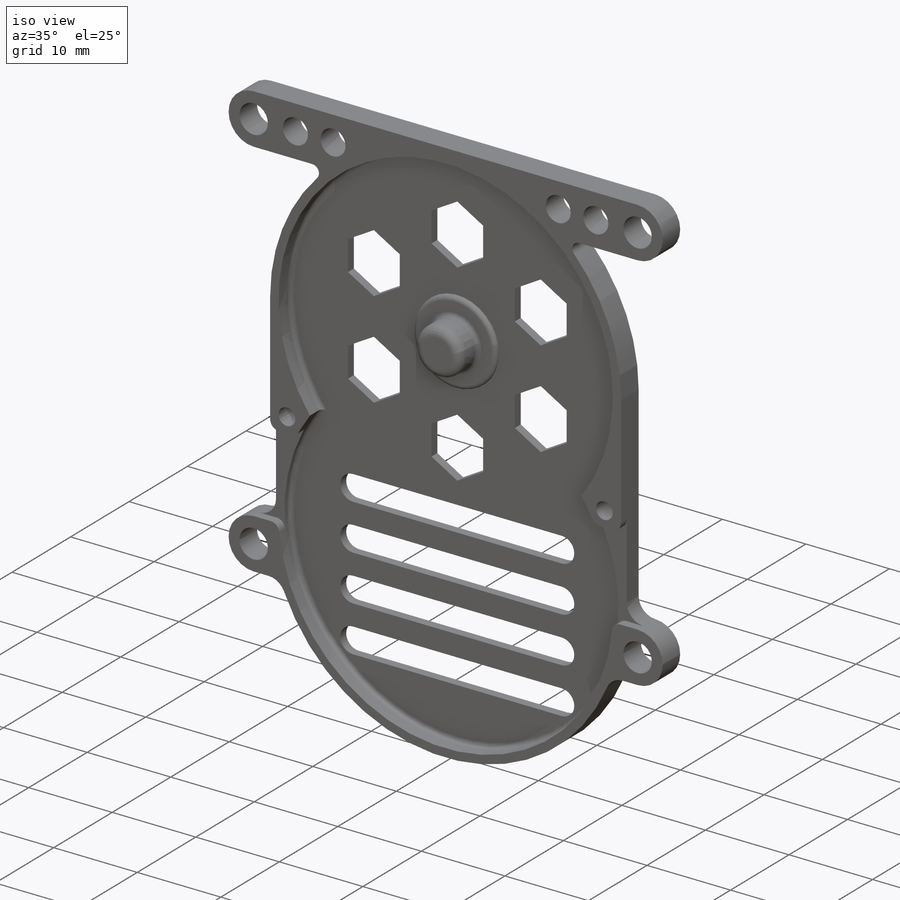
[diagram: iso view]
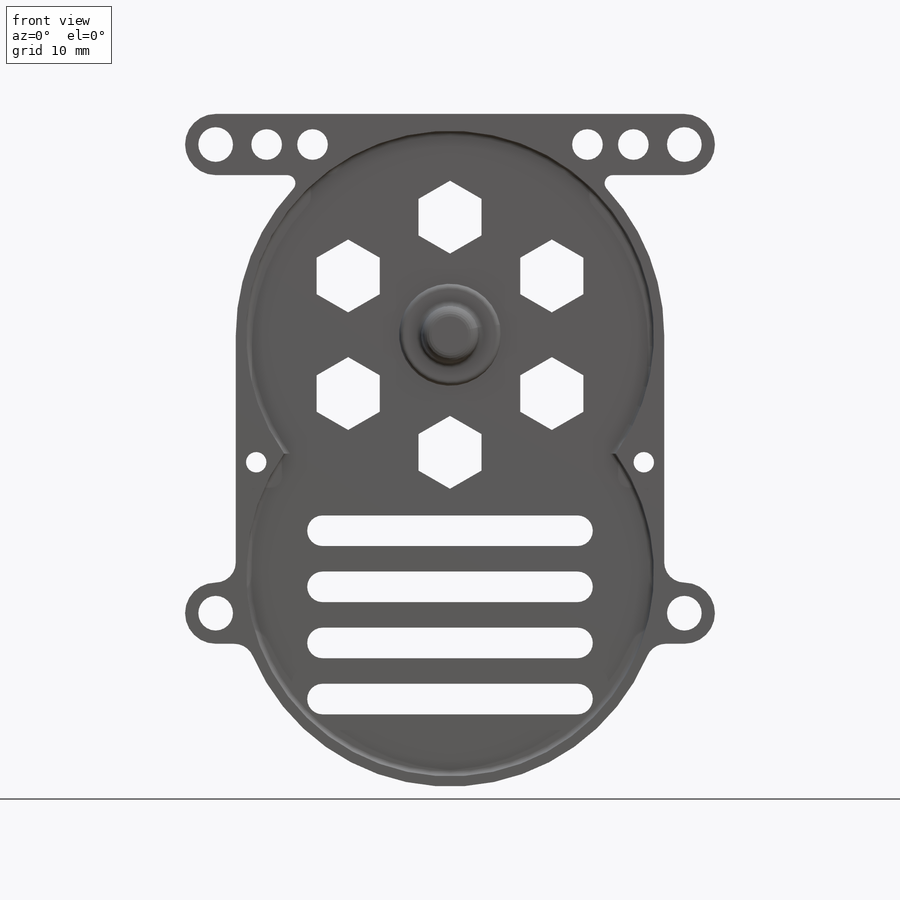
[diagram: front view]
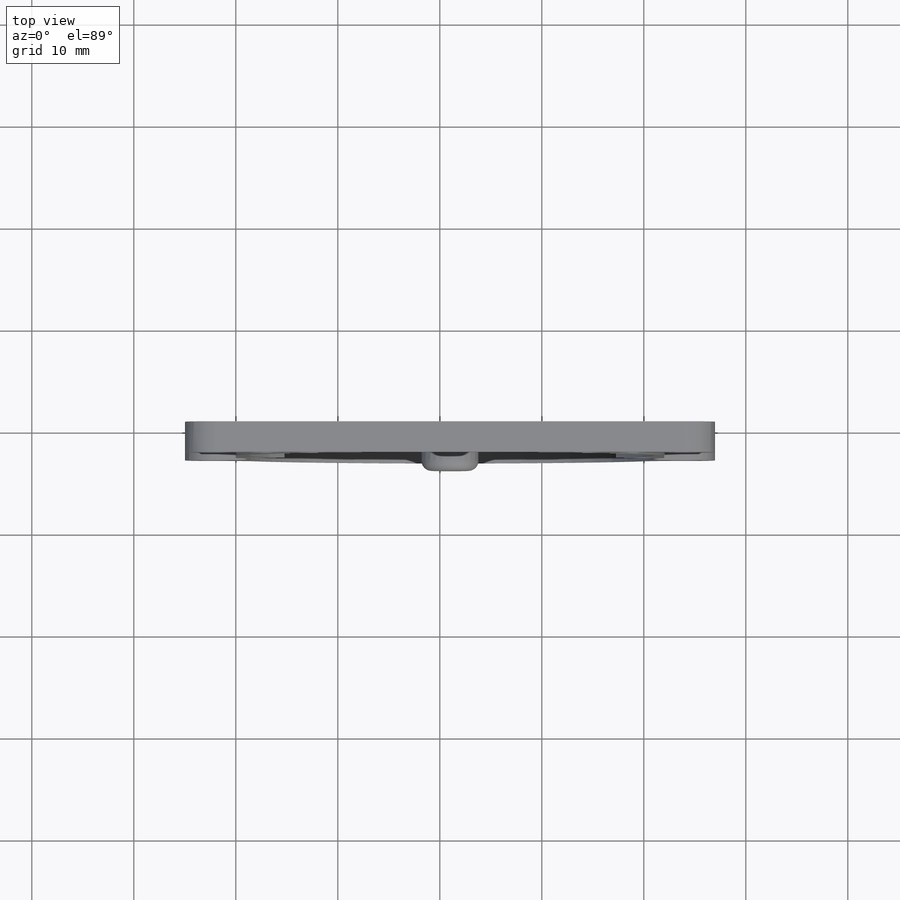
[diagram: top view]
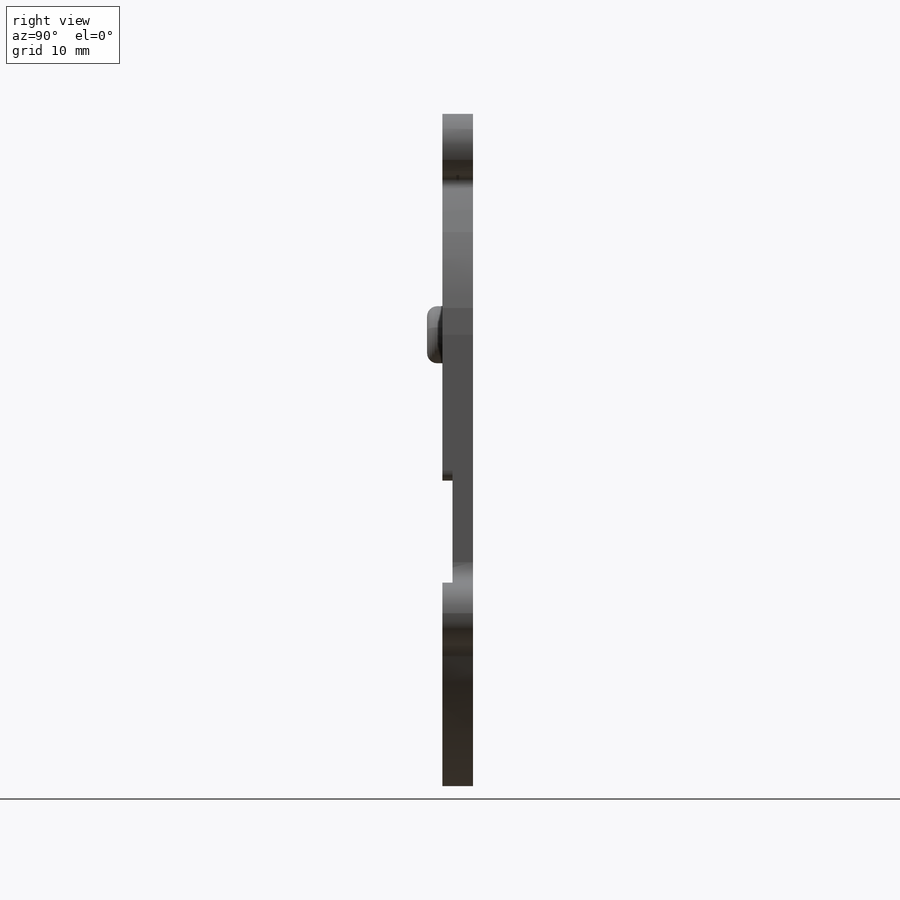
[diagram: right view]
SOLIDWORKS PART (.sldprt)
format: sldprt  version: not decoded by parser v0  size: 1,196,544 bytes
history: native  units: mm
features: sketch x12, fillet x9, cut_extrude x7, extrude x6, plane x3, material x1, pattern_circular x1, pattern_linear x1 (+10 scaffold rows collapsed)
feature tree (50):
  scaffold x10  (default folders/planes/origin — collapsed)
  material  "Material <nicht angegeben>"
  plane  "Ebene vorne"
  plane  "Ebene oben"
  plane  "Ebene rechts"
  sketch  "groundplate"  dims[c1.D4=22.0mm c1.D1=23.3mm c1.D2=22.0mm c1.D3=22.0mm c2.D4=23.5mm c2.D2=42.0mm c2.D3=23.3mm]
  extrude  "body"  Depth=3mm
  sketch  "main-box"  dims[c1.D1=40.0mm c1.D2=~38.493732mm c2.D1=44.0mm]
  cut_extrude  "box"  Depth=2mm
  sketch  "rack-channel"  dims[c1.D1=~7.574815mm c1.D2=44.0mm c2.D1=1.0mm c2.D2=10.0mm]
  cut_extrude  "rack-ch"  Depth=1mm
  extrude  "Achse2"  [1 undecoded]
  fillet  "Verrundung1"  Radius=1mm
  sketch  "wings-"  dims[c1.D3=21.0mm c1.D4=21.0mm c1.D7=21.0mm c1.D8=3.0mm c1.D1=6.0mm c1.D2=2.0mm c2.D3=2.0mm c2.D4=1.0mm c2.D5=6.0mm c2.D6=2.0mm c2.D7=2.0mm c2.D8=~3.177187mm]
  extrude  "wings"  Depth=3mm
  sketch  "Skizze6"  dims[D1=3.4mm D2=~3.30436mm]
  cut_extrude  "wing-hole"  [1 undecoded]
  sketch  "baseaxis"  dims[D1=10.0mm]
  extrude  "base-axis"  Depth=0.5mm
  sketch  "gear-axis"  dims[D1=5.6mm]
  extrude  "top-axis"  Depth=3mm
  fillet  "Verrundung2"  Radius=1mm
  fillet  "Verrundung3"  Radius=0.5mm
  fillet  "Verrundung4"  Radius=0.5mm
  fillet  "Verrundung5"  Radius=0.5mm
  fillet  "Verrundung6"  Radius=1mm
  sketch  "Skizze12"  dims[D1=66.0mm]
  cut_extrude  "Schnitt-Linear austragen2"  Depth=2mm
  pattern_circular  "Kreismuster1"  Count=6 Angle=360deg
  sketch  "Skizze14"  dims[D1=3.0mm D2=25.0mm]
  cut_extrude  "Schnitt-Linear austragen4"  [1 undecoded]
  pattern_linear  "Lineares Muster1"  Count1=4 Count2=1 Spacing1=5.5mm Spacing2=10mm
  sketch  "Skizze15"  dims[c1.D1=2.0mm c1.D4=~2.112798mm c2.D1=~7.554606mm c2.D2=12.5mm c2.D3=~12.141965mm c3.D3=90.0deg c4.D3=2.0mm c4.D4=12.5mm c4.D5=2.0mm]
  cut_extrude  "Schnitt-Linear austragen5"  [1 undecoded]
  fillet  "Verrundung8"  Radius=2mm
  fillet  "Verrundung11"  Radius=2mm
  sketch  "Skizze16"  dims[c1.D3=3.0mm c1.D4=3.4mm c1.D1=0.0mm c1.D2=~45.952354mm c2.D1=~29.71774mm c2.D2=~45.88049mm c3.D1=~45.952354mm c3.D2=45.95mm c3.D3=45.95mm c3.D4=~6.213793mm]
  extrude  "Aufsatz-Linear austragen2"  Depth=3mm
  fillet  "Verrundung12"  Radius=0.8mm
  sketch  "Skizze17"  dims[c1.D1=~3.497709mm c1.D2=3.0mm c1.D3=3.0mm c1.D5=~3.28679mm c1.D6=3.0mm c2.D1=12.5mm c2.D4=8.0mm c2.D5=12.5mm c2.D7=8.0mm]
  cut_extrude  "Schnitt-Linear austragen6"  [1 undecoded]
decode coverage: 31 of 36 modeling features carry decoded parameters
note: ~ marks probable driven/reference dimensions
note: 5 parameter values undecoded
summary: no parameter record found for 5 features
note: suppression state not decoded; provenance and decode notes live in map.json
